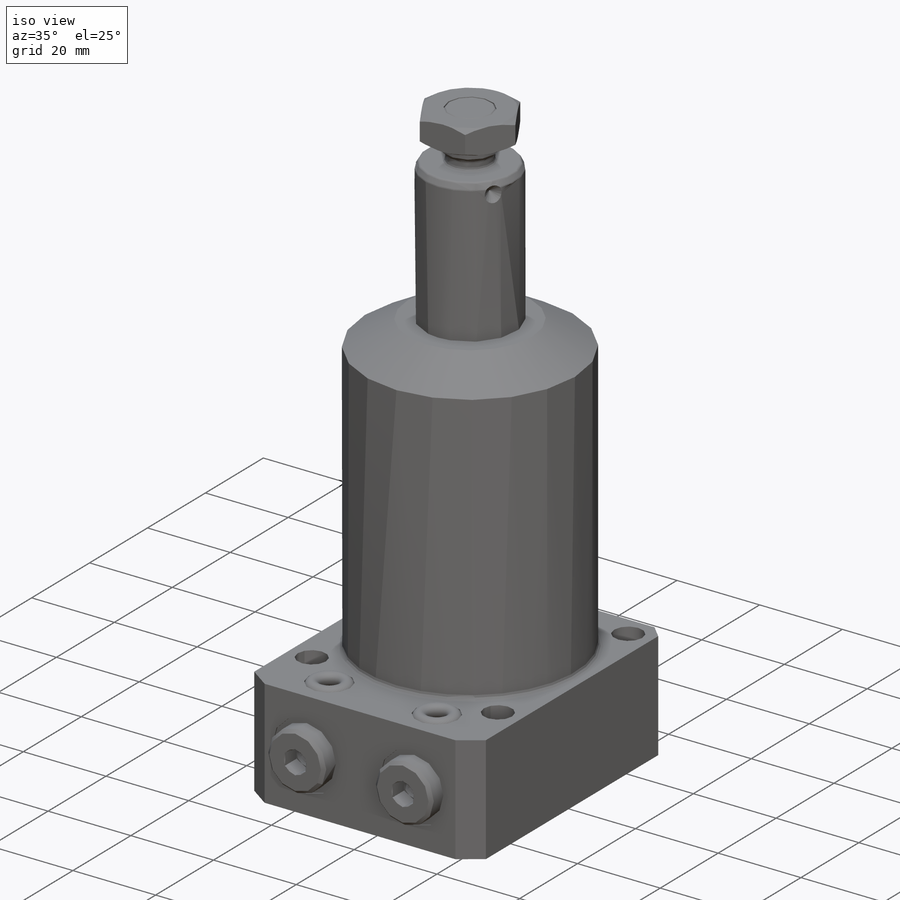
[diagram: iso view]
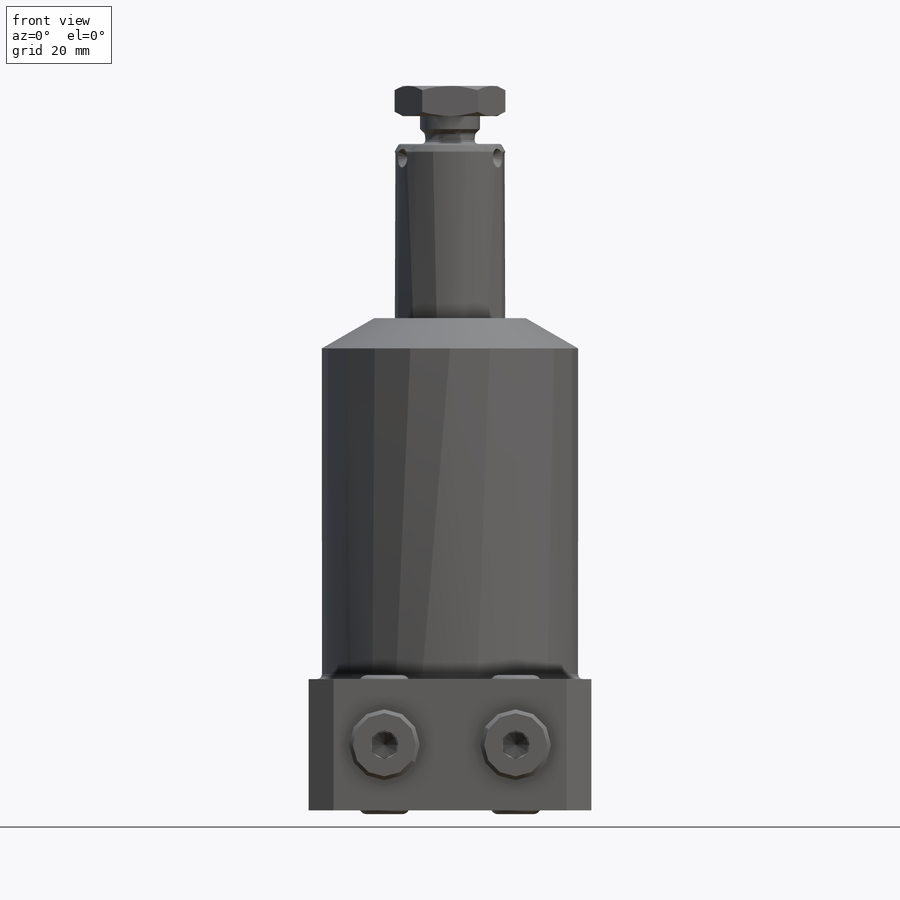
[diagram: front view]
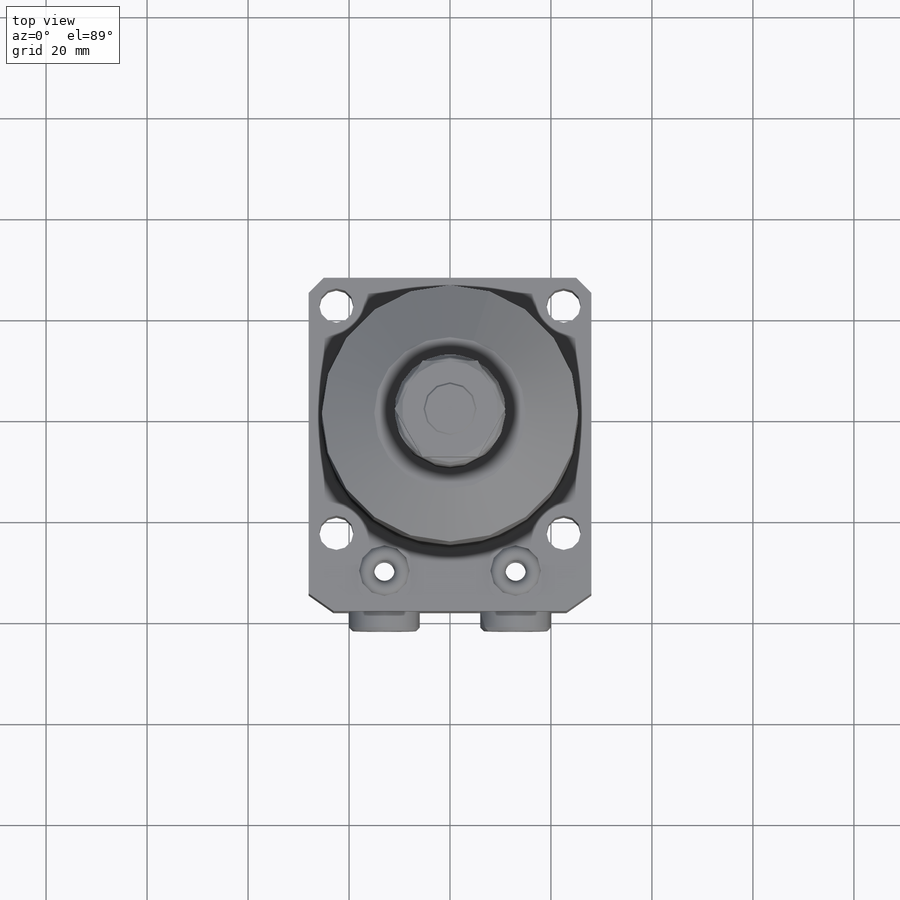
[diagram: top view]
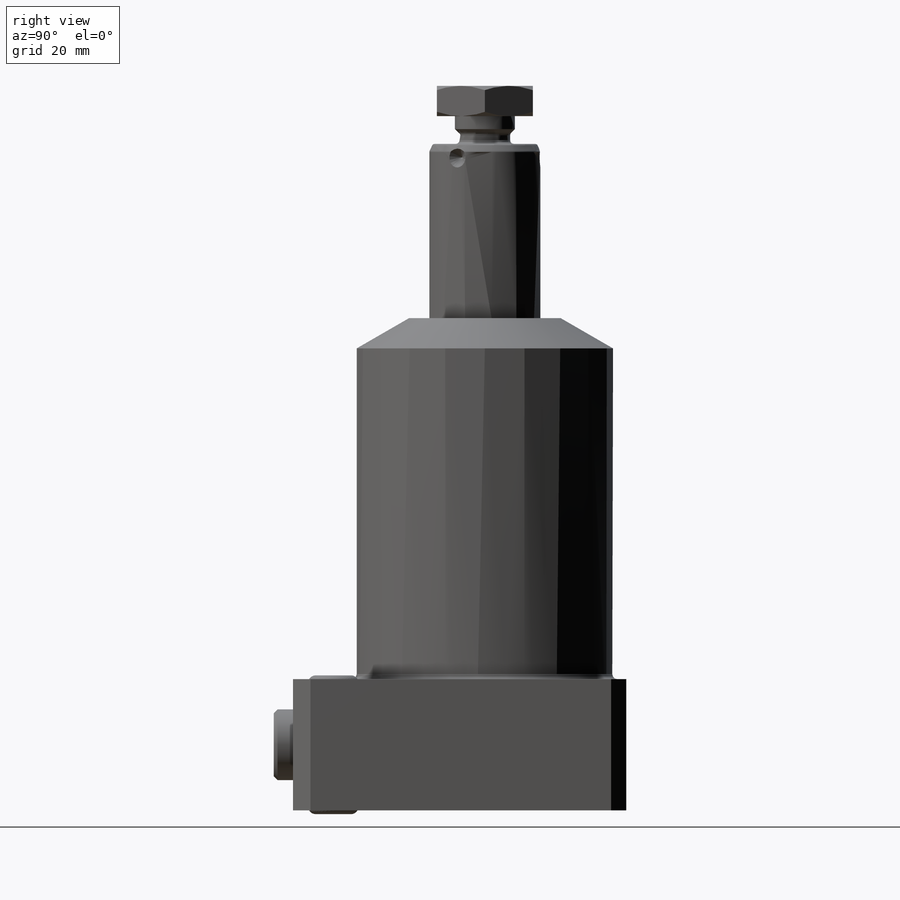
[diagram: right view]
SOLIDWORKS PART (.sldprt)
format: sldprt  version: not decoded by parser v0  size: 701,440 bytes
history: native  units: mm
features: sketch x12, revolve x4, cut_revolve x4, mirror x4, fillet x3, cut_extrude x3, pattern_circular x2, plane x2, material x1, extrude x1, chamfer x1 (+11 scaffold rows collapsed)
feature tree (48):
  scaffold x11  (default folders/planes/origin — collapsed)
  material  "AISI 1020"
  sketch  "Sketch1"  dims[c1.D1=11.5mm c1.D2=22.0mm c1.D3=10.0mm c1.D4=11.87mm c1.D5=61.5mm c1.D6=~0.699461mm c2.D6=25.0deg c2.D7=1.5mm c2.D8=0.75mm c3.D8=45.0deg c3.D9=1.0mm c3.D10=8.565mm c3.D5=79.0mm c3.D11=4.935mm c4.D5=143.5mm c4.D12=26.0mm]
  revolve  "Revolve2"  Angle=360deg
  fillet  "Fillet2"  Radius=0.75mm
  fillet  "Fillet3"  Radius=0.5mm
  sketch  "Sketch2"  dims[c1.D1=2.67mm c1.D2=1.5mm c2.D2=45.0deg c2.D3=4.0mm]
  cut_revolve  "Cut-Revolve1"  Angle=360deg
  sketch  "Sketch3"  dims[D2=10.5mm D1=19.0mm]
  extrude  "Extrude3"  Depth=6mm
  pattern_circular  "CirPattern1"  Count=3 Angle=360deg
  sketch  "Sketch4"  dims[c1.D1=~4.41713mm c2.D1=30.0deg c2.D2=3.0mm]
  cut_revolve  "Cut-Revolve3"  Angle=360deg
  sketch  "Sketch6"  dims[c1.D1=50.77mm c1.D2=95.0mm c1.D3=33.0mm c1.D4=88.9mm c1.D5=~24.894312mm c2.D5=30.0deg c2.D6=30.0mm c2.D2=26.0mm c2.D3=97.5mm]
  revolve  "Revolve3"  Angle=360deg
  sketch  "Sketch7"  dims[D1=56.0mm D2=66.0mm D3=28.0mm]
  cut_extrude  "Cut-Extrude5"  [1 undecoded]
  sketch  "Sketch8"  dims[D1=6.8mm D2=22.5mm D3=22.5mm]
  cut_extrude  "Cut-Extrude6"  [1 undecoded]
  pattern_circular  "CirPattern2"  Count=4 Angle=360deg
  chamfer  "Chamfer1"  Distance=3mm Angle=45deg
  fillet  "Fillet5"  Radius=1mm
  plane  "Plane1"  Offset=13mm
  sketch  "Sketch11"  dims[c1.D1=13.0mm c1.D2=0.25mm c1.D3=8.84mm c1.D4=15.16mm c1.D5=16.5mm c1.D6=~1.736649mm c2.D6=45.0deg c2.D7=0.58mm]
  cut_revolve  "Cut-Revolve5"  Angle=360deg
  plane  "Plane2"  Offset=30mm
  sketch  "Sketch13"  dims[c1.D1=13.0mm c1.D2=5.0mm c1.D3=12.0mm c1.D4=2.25mm c1.D5=10.0mm c1.D6=~1.397068mm c2.D6=45.0deg c2.D7=0.625mm]
  cut_revolve  "Cut-Revolve6"  Angle=360deg
  mirror  "Mirror4"
  sketch  "Sketch14"  dims[c1.D1=8.25mm c1.D2=~2.442152mm c1.D3=~1.886782mm c2.D3=31.0deg c2.D4=5.0mm c2.D5=4.06mm c2.D6=14.0mm c2.D7=~1.074619mm c3.D7=59.0deg c4.D7=~1.253686mm c5.D7=45.0deg c5.D8=0.75mm c5.D9=~0.70036mm c6.D9=45.0deg c6.D10=0.25mm c6.D3=~2.773157mm c7.D3=59.0deg c7.D11=0.001mm]
  revolve  "Revolve6"  Angle=360deg
  sketch  "Sketch15"  dims[D1=5.0mm]
  cut_extrude  "Cut-Extrude8"  Depth=4.06mm
  mirror  "Mirror1"
  sketch  "Sketch16"  dims[c1.D1=3.0mm c1.D3=3.0mm c1.D2=7.0mm c2.D3=0.75mm]
  revolve  "Revolve7"  Angle=360deg
  mirror  "Mirror3"
  mirror  "Mirror5"
decode coverage: 28 of 34 modeling features carry decoded parameters
note: ~ marks probable driven/reference dimensions
note: 2 parameter values undecoded
note: suppression state not decoded; provenance and decode notes live in map.json
